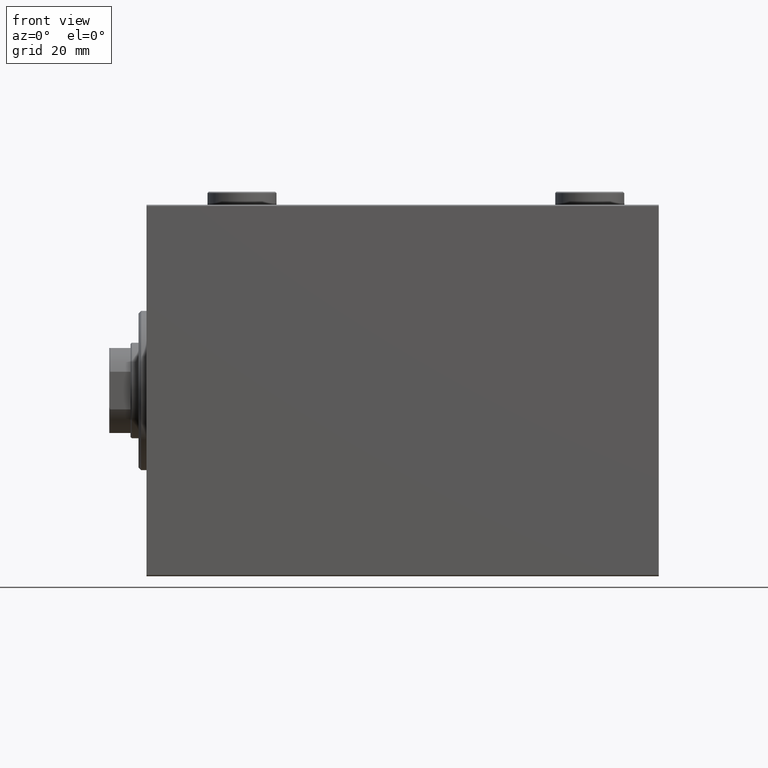
[diagram: clean part render]
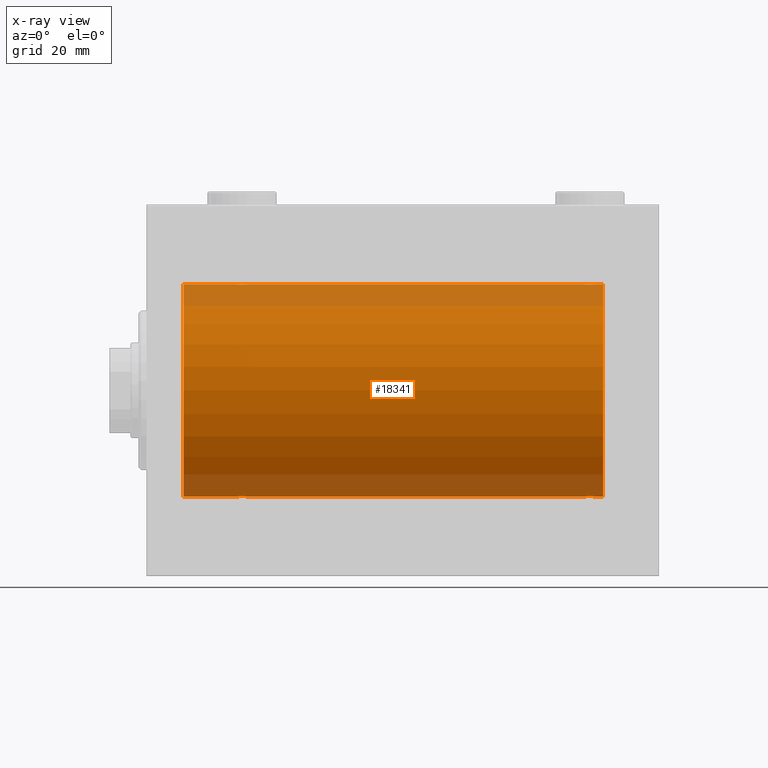
[diagram: x-ray — body ghosted, one internal face saturated and labeled with its STEP entity id]
A machine part, front view, then the same camera in x-ray: the body is ghosted and one INTERNAL B-rep face — a face not visible from any outside direction — is saturated and labeled: STEP entity #18341.
In plain terms, the highlighted cylindrical surface (partial cylindrical patch) has radius 40 mm, axis along (-1, -0, -0).
Its self-contained STEP definition (entity closure, byte-faithful):
#16 = CARTESIAN_POINT ( 'NONE',  ( 166.8043946892691736, -3.000157693440640205, -39.88732948994960736 ) ) ;
#273 = VERTEX_POINT ( 'NONE', #3049 ) ;
#688 = CARTESIAN_POINT ( 'NONE',  ( 36.96938341894465907, -2.845855236045336856, -39.89870693240651178 ) ) ;
#701 = CARTESIAN_POINT ( 'NONE',  ( 170.0000000000000284, -0.1957844162750470851, -39.99999999999999289 ) ) ;
#804 = ORIENTED_EDGE ( 'NONE', *, *, #15633, .T. ) ;
#805 = CARTESIAN_POINT ( 'NONE',  ( 169.3825168091146622, -1.833695109615722352, 39.95828327492363030 ) ) ;
#1086 = VERTEX_POINT ( 'NONE', #43477 ) ;
#1141 = CARTESIAN_POINT ( 'NONE',  ( 33.61748319088535908, -1.833695109615714802, -39.95828327492363741 ) ) ;
#1780 = CARTESIAN_POINT ( 'NONE',  ( 14.00000000000001243, 4.898587196589413026E-15, -40.00000000000000000 ) ) ;
#2131 = VECTOR ( 'NONE', #5060, 1000.000000000000000 ) ;
#2175 = CARTESIAN_POINT ( 'NONE',  ( 14.00000000000001243, 0.000000000000000000, 0.000000000000000000 ) ) ;
#2401 = CYLINDRICAL_SURFACE ( 'NONE', #3856, 40.00000000000000000 ) ;
#2425 = CARTESIAN_POINT ( 'NONE',  ( 170.0000000000000284, 1.446721683758770418E-15, 40.00000000000000000 ) ) ;
#2621 = FACE_OUTER_BOUND ( 'NONE', #4472, .T. ) ;
#2666 = DIRECTION ( 'NONE',  ( -1.000000000000000000, -0.000000000000000000, -0.000000000000000000 ) ) ;
#2718 = CARTESIAN_POINT ( 'NONE',  ( 37.50088468404035069, -2.604941918888315833, 39.91523680494983495 ) ) ;
#2730 = CARTESIAN_POINT ( 'NONE',  ( 164.0000000000000284, -0.1957844162750525807, 40.00000000000000000 ) ) ;
#3049 = CARTESIAN_POINT ( 'NONE',  ( 170.0000000000000284, 4.898587181765620889E-15, -40.00000000000000000 ) ) ;
#3261 = EDGE_CURVE ( 'NONE', #273, #29802, #3468, .T. ) ;
#3411 = CARTESIAN_POINT ( 'NONE',  ( 38.69537007708435539, -1.331594428131644747, 39.97823692017209396 ) ) ;
#3468 = B_SPLINE_CURVE_WITH_KNOTS ( 'NONE', 3,
 ( #10872, #701, #42308, #25450, #10413, #42990, #24996, #32616, #21963, #35159, #7407, #7859, #35395, #21507, #14795, #28693, #28922, #16, #36080, #3488, #17572, #3948, #11326, #29144, #4406, #18499, #18031, #14111, #28231, #24758, #32154, #11103 ),
 .UNSPECIFIED., .F., .F.,
 ( 4, 2, 2, 2, 2, 2, 2, 2, 2, 2, 2, 2, 2, 2, 2, 4 ),
 ( 0.009382660366305091426, 0.009968941372944125495, 0.01055522237958316130, 0.01114150338622219710, 0.01172778439286123117, 0.01231406539950026524, 0.01290034640613930104, 0.01348662741277833685, 0.01407290841941737092, 0.01465918942605640499, 0.01524547043269544079, 0.01583175143933447659, 0.01641803244597351066, 0.01700431345261254473, 0.01759059445925158227, 0.01876315647252968163 ),
 .UNSPECIFIED. ) ;
#3488 = CARTESIAN_POINT ( 'NONE',  ( 166.2254432117366321, -2.904869018727222585, -39.89440043036668726 ) ) ;
#3597 = CARTESIAN_POINT ( 'NONE',  ( 164.1533472698686467, -0.9668189122103342248, 39.98872185468384544 ) ) ;
#3706 = CARTESIAN_POINT ( 'NONE',  ( 39.00000000000000000, 4.898587181754971267E-15, -40.00000000000000000 ) ) ;
#3802 = DIRECTION ( 'NONE',  ( -1.000000000000000000, -0.000000000000000000, -0.000000000000000000 ) ) ;
#3856 = AXIS2_PLACEMENT_3D ( 'NONE', #20180, #37759, #16711 ) ;
#3930 = CARTESIAN_POINT ( 'NONE',  ( 39.00000000000000000, 4.898587181754971267E-15, -40.00000000000000000 ) ) ;
#3933 = CARTESIAN_POINT ( 'NONE',  ( 33.07973825008353685, -0.7903958539027382546, -39.99381900068937767 ) ) ;
#3948 = CARTESIAN_POINT ( 'NONE',  ( 165.6714635525371193, -2.696981015661925163, -39.90904630908467965 ) ) ;
#4163 = CARTESIAN_POINT ( 'NONE',  ( 38.38507600915353635, -1.830402106103512505, -39.95843610133493229 ) ) ;
#4320 = EDGE_CURVE ( 'NONE', #32471, #26175, #36768, .T. ) ;
#4397 = CARTESIAN_POINT ( 'NONE',  ( 32.99999999999998579, -0.3964922677423637909, -39.99999999999998579 ) ) ;
#4406 = CARTESIAN_POINT ( 'NONE',  ( 165.0186372048577539, -2.261082456166712440, -39.93628274425757496 ) ) ;
#4472 = EDGE_LOOP ( 'NONE', ( #8267, #16247, #18360, #12113, #24467, #11999, #42466, #22269, #9883, #39443, #804, #6058 ) ) ;
#4528 = CARTESIAN_POINT ( 'NONE',  ( 172.0000000000000000, 4.898587196589413026E-15, -40.00000000000000000 ) ) ;
#4983 = DIRECTION ( 'NONE',  ( -1.000000000000000000, -0.000000000000000000, -0.000000000000000000 ) ) ;
#5060 = DIRECTION ( 'NONE',  ( -1.000000000000000000, -0.000000000000000000, -0.000000000000000000 ) ) ;
#5151 = CARTESIAN_POINT ( 'NONE',  ( 32.99999999999999289, 4.605585004310627937E-15, -40.00000000000000000 ) ) ;
#6058 = ORIENTED_EDGE ( 'NONE', *, *, #42338, .F. ) ;
#6184 = CARTESIAN_POINT ( 'NONE',  ( 36.96489325853514174, -2.847401743820462183, 39.89859630624607689 ) ) ;
#6192 = CARTESIAN_POINT ( 'NONE',  ( 165.1695517717760424, -2.384933850258109445, 39.92898715513240404 ) ) ;
#6821 = DIRECTION ( 'NONE',  ( -1.000000000000000000, -0.000000000000000000, -0.000000000000000000 ) ) ;
#6873 = CARTESIAN_POINT ( 'NONE',  ( 164.0000000000000284, -8.638112143271993746E-15, -40.00000000000000000 ) ) ;
#7288 = CARTESIAN_POINT ( 'NONE',  ( 164.3956640008792363, -1.502129635934003948, 39.97212271185186694 ) ) ;
#7396 = CARTESIAN_POINT ( 'NONE',  ( 38.84665273013138176, -0.9668189122103333366, -39.98872185468385254 ) ) ;
#7407 = CARTESIAN_POINT ( 'NONE',  ( 168.8304482282240997, -2.384933850258111221, -39.92898715513241825 ) ) ;
#7444 = VECTOR ( 'NONE', #6821, 1000.000000000000000 ) ;
#7475 = CARTESIAN_POINT ( 'NONE',  ( 172.0000000000000000, 4.898587196589413026E-15, -40.00000000000000000 ) ) ;
#7515 = CARTESIAN_POINT ( 'NONE',  ( 164.3027865941912466, -1.327859336864145590, 39.97836169682017982 ) ) ;
#7616 = CARTESIAN_POINT ( 'NONE',  ( 32.99999999999999289, 4.605585004310627937E-15, -40.00000000000000000 ) ) ;
#7641 = B_SPLINE_CURVE_WITH_KNOTS ( 'NONE', 3,
 ( #26113, #9204, #26574, #11993, #22400, #8988, #40647, #33277, #23307, #23078, #37401, #29805, #15688, #43885, #12220, #38305, #35082, #27238, #10104, #9654, #6184, #30925, #2718, #13341, #27461, #41766, #27015, #16812, #3411, #30701, #23756, #24215 ),
 .UNSPECIFIED., .F., .F.,
 ( 4, 2, 2, 2, 2, 2, 2, 2, 2, 2, 2, 2, 2, 2, 2, 4 ),
 ( 0.009382660366305105304, 0.009968941372944142842, 0.01055522237958318038, 0.01114150338622221965, 0.01172778439286125719, 0.01231406539950029473, 0.01290034640613933400, 0.01348662741277837154, 0.01407290841941740908, 0.01465918942605644835, 0.01524547043269548416, 0.01583175143933452517, 0.01641803244597356271, 0.01700431345261260024, 0.01759059445925163778, 0.01876315647252971286 ),
 .UNSPECIFIED. ) ;
#7735 = CARTESIAN_POINT ( 'NONE',  ( 168.9813627951423314, -2.261082456166709775, 39.93628274425758207 ) ) ;
#7859 = CARTESIAN_POINT ( 'NONE',  ( 168.5044308291347193, -2.602909538701760006, -39.91537030566259148 ) ) ;
#7965 = CIRCLE ( 'NONE', #19024, 40.00000000000000000 ) ;
#8267 = ORIENTED_EDGE ( 'NONE', *, *, #41963, .F. ) ;
#8426 = CARTESIAN_POINT ( 'NONE',  ( 172.0000000000000000, 0.000000000000000000, 40.00000000000000000 ) ) ;
#8739 = EDGE_CURVE ( 'NONE', #17709, #40667, #33470, .T. ) ;
#8744 = VECTOR ( 'NONE', #36992, 1000.000000000000000 ) ;
#8988 = CARTESIAN_POINT ( 'NONE',  ( 33.30278659419118270, -1.327859336864150253, 39.97836169682017982 ) ) ;
#9204 = CARTESIAN_POINT ( 'NONE',  ( 32.99999999999997158, -0.1957844162750552452, 40.00000000000000000 ) ) ;
#9654 = CARTESIAN_POINT ( 'NONE',  ( 36.77455678826341057, -2.904869018727228358, 39.89440043036668015 ) ) ;
#9883 = ORIENTED_EDGE ( 'NONE', *, *, #17080, .T. ) ;
#9907 = CARTESIAN_POINT ( 'NONE',  ( 172.0000000000000000, 0.000000000000000000, 0.000000000000000000 ) ) ;
#10104 = CARTESIAN_POINT ( 'NONE',  ( 36.39109692509333627, -2.980812880639903906, 39.88879797994688658 ) ) ;
#10413 = CARTESIAN_POINT ( 'NONE',  ( 169.8466527301314102, -0.9668189122103265642, -39.98872185468383122 ) ) ;
#10750 = CARTESIAN_POINT ( 'NONE',  ( 164.0189812288907376, -0.3904143323715967839, 39.99856256910221219 ) ) ;
#10872 = CARTESIAN_POINT ( 'NONE',  ( 170.0000000000000284, 4.898587181765620889E-15, -40.00000000000000000 ) ) ;
#10874 = CARTESIAN_POINT ( 'NONE',  ( 32.99999999999999289, -1.483452932268112700E-23, 40.00000000000000000 ) ) ;
#11103 = CARTESIAN_POINT ( 'NONE',  ( 164.0000000000000284, -8.638112143271993746E-15, -40.00000000000000000 ) ) ;
#11326 = CARTESIAN_POINT ( 'NONE',  ( 165.4991153159597275, -2.604941918888315833, -39.91523680494984916 ) ) ;
#11545 = CARTESIAN_POINT ( 'NONE',  ( 38.69721340580881730, -1.327859336864144035, -39.97836169682019403 ) ) ;
#11778 = CARTESIAN_POINT ( 'NONE',  ( 38.26097616994740491, -1.981471132463162643, -39.95113231465139592 ) ) ;
#11979 = LINE ( 'NONE', #42958, #2131 ) ;
#11993 = CARTESIAN_POINT ( 'NONE',  ( 33.09574826348647036, -0.7773146824711036906, 39.99291453282343412 ) ) ;
#11999 = ORIENTED_EDGE ( 'NONE', *, *, #14776, .T. ) ;
#12113 = ORIENTED_EDGE ( 'NONE', *, *, #45281, .T. ) ;
#12220 = CARTESIAN_POINT ( 'NONE',  ( 35.22130476584258219, -2.903766417398241373, 39.89448096967571189 ) ) ;
#12452 = EDGE_CURVE ( 'NONE', #38303, #1086, #33667, .T. ) ;
#12710 = CARTESIAN_POINT ( 'NONE',  ( 172.0000000000000000, 0.000000000000000000, 40.00000000000000000 ) ) ;
#12799 = DIRECTION ( 'NONE',  ( -1.000000000000000000, 0.000000000000000000, 0.000000000000000000 ) ) ;
#13341 = CARTESIAN_POINT ( 'NONE',  ( 37.82690184632411246, -2.387636253591820079, 39.92882473497731866 ) ) ;
#14111 = CARTESIAN_POINT ( 'NONE',  ( 164.3981127187151969, -1.506322235190792780, -39.97196309111976831 ) ) ;
#14552 = CARTESIAN_POINT ( 'NONE',  ( 36.77869523415743913, -2.903766417398228938, -39.89448096967571900 ) ) ;
#14641 = LINE ( 'NONE', #22037, #20494 ) ;
#14667 = CARTESIAN_POINT ( 'NONE',  ( 165.0153855218772776, -2.258217541132898631, 39.93644519243653690 ) ) ;
#14776 = EDGE_CURVE ( 'NONE', #40667, #43376, #41946, .T. ) ;
#14782 = CARTESIAN_POINT ( 'NONE',  ( 35.22544321173658943, -2.904869018727217700, -39.89440043036668726 ) ) ;
#14795 = CARTESIAN_POINT ( 'NONE',  ( 167.7786952341575386, -2.903766417398233823, -39.89448096967571900 ) ) ;
#14899 = CARTESIAN_POINT ( 'NONE',  ( 166.0306165810553978, -2.845855236045348402, 39.89870693240650468 ) ) ;
#15633 = EDGE_CURVE ( 'NONE', #38303, #39420, #44573, .T. ) ;
#15688 = CARTESIAN_POINT ( 'NONE',  ( 34.66775731134134730, -2.695129988695744494, 39.90917164320281074 ) ) ;
#16247 = ORIENTED_EDGE ( 'NONE', *, *, #25185, .T. ) ;
#16711 = DIRECTION ( 'NONE',  ( 0.000000000000000000, 0.000000000000000000, 1.000000000000000000 ) ) ;
#16812 = CARTESIAN_POINT ( 'NONE',  ( 38.60188728128492386, -1.506322235190783232, 39.97196309111974699 ) ) ;
#17080 = EDGE_CURVE ( 'NONE', #32471, #1086, #7641, .T. ) ;
#17572 = CARTESIAN_POINT ( 'NONE',  ( 166.0351067414649151, -2.847401743820456854, -39.89859630624609110 ) ) ;
#17683 = CARTESIAN_POINT ( 'NONE',  ( 164.7390238300525880, -1.981471132463162643, 39.95113231465138171 ) ) ;
#17709 = VERTEX_POINT ( 'NONE', #3930 ) ;
#17794 = CARTESIAN_POINT ( 'NONE',  ( 38.90425173651351543, -0.7773146824710984726, -39.99291453282344122 ) ) ;
#17910 = CARTESIAN_POINT ( 'NONE',  ( 165.4955691708653660, -2.602909538701757342, 39.91537030566259858 ) ) ;
#18031 = CARTESIAN_POINT ( 'NONE',  ( 164.6174831908854230, -1.833695109615727015, -39.95828327492365162 ) ) ;
#18135 = CARTESIAN_POINT ( 'NONE',  ( 164.6149239908464494, -1.830402106103516280, 39.95843610133492518 ) ) ;
#18251 = CARTESIAN_POINT ( 'NONE',  ( 37.50443082913466242, -2.602909538701748016, -39.91537030566259148 ) ) ;
#18341 = ADVANCED_FACE ( 'NONE', ( #2621 ), #2401, .F. ) ;
#18360 = ORIENTED_EDGE ( 'NONE', *, *, #3261, .T. ) ;
#18386 = LINE ( 'NONE', #4528, #23210 ) ;
#18499 = CARTESIAN_POINT ( 'NONE',  ( 164.7417032967950092, -1.984537326394312906, -39.95097977400578770 ) ) ;
#19024 = AXIS2_PLACEMENT_3D ( 'NONE', #9907, #38110, #23344 ) ;
#20180 = CARTESIAN_POINT ( 'NONE',  ( 172.0000000000000000, 0.000000000000000000, 0.000000000000000000 ) ) ;
#20283 = CARTESIAN_POINT ( 'NONE',  ( 164.0957482634864562, -0.7773146824711021363, 39.99291453282343412 ) ) ;
#20494 = VECTOR ( 'NONE', #3802, 1000.000000000000000 ) ;
#21387 = CARTESIAN_POINT ( 'NONE',  ( 166.6047751654643037, -2.980272303779546217, 39.88883864243170052 ) ) ;
#21496 = CARTESIAN_POINT ( 'NONE',  ( 33.39811271871507614, -1.506322235190781456, -39.97196309111974699 ) ) ;
#21507 = CARTESIAN_POINT ( 'NONE',  ( 167.9693834189446875, -2.845855236045351067, -39.89870693240651178 ) ) ;
#21837 = CARTESIAN_POINT ( 'NONE',  ( 170.0000000000000568, -0.3964922677423700081, 40.00000000000001421 ) ) ;
#21952 = CARTESIAN_POINT ( 'NONE',  ( 37.98461447812278635, -2.258217541132897743, -39.93644519243654400 ) ) ;
#21963 = CARTESIAN_POINT ( 'NONE',  ( 169.2609761699474689, -1.981471132463164420, -39.95113231465140302 ) ) ;
#22037 = CARTESIAN_POINT ( 'NONE',  ( 172.0000000000000000, 0.000000000000000000, 40.00000000000000000 ) ) ;
#22185 = CARTESIAN_POINT ( 'NONE',  ( 37.83044822822401443, -2.384933850258100119, -39.92898715513241115 ) ) ;
#22269 = ORIENTED_EDGE ( 'NONE', *, *, #4320, .F. ) ;
#22400 = CARTESIAN_POINT ( 'NONE',  ( 33.15334726986859692, -0.9668189122103387767, 39.98872185468385254 ) ) ;
#23078 = CARTESIAN_POINT ( 'NONE',  ( 34.01538552187719233, -2.258217541132905293, 39.93644519243653690 ) ) ;
#23210 = VECTOR ( 'NONE', #4983, 1000.000000000000000 ) ;
#23307 = CARTESIAN_POINT ( 'NONE',  ( 33.73902383005257377, -1.981471132463168416, 39.95113231465138881 ) ) ;
#23344 = DIRECTION ( 'NONE',  ( 0.000000000000000000, 0.000000000000000000, 1.000000000000000000 ) ) ;
#23756 = CARTESIAN_POINT ( 'NONE',  ( 39.00000000000000711, -0.3964922677423692865, 40.00000000000000711 ) ) ;
#23899 = CIRCLE ( 'NONE', #26132, 40.00000000000000000 ) ;
#24215 = CARTESIAN_POINT ( 'NONE',  ( 39.00000000000000000, 1.037715139942869821E-15, 40.00000000000000000 ) ) ;
#24467 = ORIENTED_EDGE ( 'NONE', *, *, #8739, .T. ) ;
#24758 = CARTESIAN_POINT ( 'NONE',  ( 164.0797382500836079, -0.7903958539027432506, -39.99381900068937767 ) ) ;
#24870 = CARTESIAN_POINT ( 'NONE',  ( 166.7995871398080396, -2.999840380514742666, 39.88735335562825668 ) ) ;
#24982 = CARTESIAN_POINT ( 'NONE',  ( 38.99999999999999289, -0.1957844162750510819, -40.00000000000000711 ) ) ;
#24996 = CARTESIAN_POINT ( 'NONE',  ( 169.6043359991209059, -1.502129635934011054, -39.97212271185185273 ) ) ;
#25106 = CARTESIAN_POINT ( 'NONE',  ( 168.3285364474630512, -2.696981015661923387, 39.90904630908469386 ) ) ;
#25185 = EDGE_CURVE ( 'NONE', #43871, #273, #18386, .T. ) ;
#25450 = CARTESIAN_POINT ( 'NONE',  ( 169.9042517365135438, -0.7773146824710949199, -39.99291453282344122 ) ) ;
#25902 = CARTESIAN_POINT ( 'NONE',  ( 36.20041286019198168, -2.999840380514735116, -39.88735335562824957 ) ) ;
#26113 = CARTESIAN_POINT ( 'NONE',  ( 32.99999999999999289, -1.483452932268112700E-23, 40.00000000000000000 ) ) ;
#26132 = AXIS2_PLACEMENT_3D ( 'NONE', #2175, #12799, #27143 ) ;
#26175 = VERTEX_POINT ( 'NONE', #43756 ) ;
#26574 = CARTESIAN_POINT ( 'NONE',  ( 33.01898122889073051, -0.3904143323715976166, 39.99856256910221219 ) ) ;
#27015 = CARTESIAN_POINT ( 'NONE',  ( 38.38251680911464803, -1.833695109615718355, 39.95828327492363741 ) ) ;
#27143 = DIRECTION ( 'NONE',  ( 0.000000000000000000, 0.000000000000000000, 1.000000000000000000 ) ) ;
#27238 = CARTESIAN_POINT ( 'NONE',  ( 36.19560531073086906, -3.000157693440643758, 39.88732948994960026 ) ) ;
#27283 = EDGE_CURVE ( 'NONE', #43376, #26175, #23899, .T. ) ;
#27461 = CARTESIAN_POINT ( 'NONE',  ( 37.98136279514229585, -2.261082456166707111, 39.93628274425758207 ) ) ;
#28048 = VECTOR ( 'NONE', #2666, 1000.000000000000000 ) ;
#28111 = CARTESIAN_POINT ( 'NONE',  ( 166.2213047658425751, -2.903766417398230271, 39.89448096967571189 ) ) ;
#28231 = CARTESIAN_POINT ( 'NONE',  ( 164.3046299229157228, -1.331594428131648522, -39.97823692017211528 ) ) ;
#28336 = CARTESIAN_POINT ( 'NONE',  ( 169.9202617499165626, -0.7903958539027363672, 39.99381900068937767 ) ) ;
#28444 = CARTESIAN_POINT ( 'NONE',  ( 35.80439468926913804, -3.000157693440631324, -39.88732948994960026 ) ) ;
#28693 = CARTESIAN_POINT ( 'NONE',  ( 167.3952248345358100, -2.980272303779548881, -39.88883864243168631 ) ) ;
#28801 = CARTESIAN_POINT ( 'NONE',  ( 168.8269018463242048, -2.387636253591820079, 39.92882473497732576 ) ) ;
#28910 = CARTESIAN_POINT ( 'NONE',  ( 33.30462992291564461, -1.331594428131640528, -39.97823692017208685 ) ) ;
#28922 = CARTESIAN_POINT ( 'NONE',  ( 167.2004128601921025, -2.999840380514743998, -39.88735335562825668 ) ) ;
#29144 = CARTESIAN_POINT ( 'NONE',  ( 165.1730981536759657, -2.387636253591822300, -39.92882473497733287 ) ) ;
#29362 = CARTESIAN_POINT ( 'NONE',  ( 38.98101877110926239, -0.3904143323715931757, -39.99856256910221219 ) ) ;
#29802 = VERTEX_POINT ( 'NONE', #6873 ) ;
#29805 = CARTESIAN_POINT ( 'NONE',  ( 34.49556917086533758, -2.602909538701760006, 39.91537030566259148 ) ) ;
#30701 = CARTESIAN_POINT ( 'NONE',  ( 38.92026174991647025, -0.7903958539027386987, 39.99381900068935636 ) ) ;
#30925 = CARTESIAN_POINT ( 'NONE',  ( 37.32853644746295885, -2.696981015661930936, 39.90904630908465833 ) ) ;
#30935 = CARTESIAN_POINT ( 'NONE',  ( 168.5008846840404431, -2.604941918888313612, 39.91523680494984916 ) ) ;
#31015 = VERTEX_POINT ( 'NONE', #8426 ) ;
#31810 = CARTESIAN_POINT ( 'NONE',  ( 170.0000000000000284, 1.446721683758770418E-15, 40.00000000000000000 ) ) ;
#31917 = CARTESIAN_POINT ( 'NONE',  ( 37.33224268865864559, -2.695129988695729839, -39.90917164320280364 ) ) ;
#32144 = CARTESIAN_POINT ( 'NONE',  ( 36.39522483453576029, -2.980272303779541332, -39.88883864243169342 ) ) ;
#32154 = CARTESIAN_POINT ( 'NONE',  ( 164.0000000000000284, -0.3964922677423805553, -40.00000000000000000 ) ) ;
#32370 = CARTESIAN_POINT ( 'NONE',  ( 34.01863720485770415, -2.261082456166700005, -39.93628274425758917 ) ) ;
#32471 = VERTEX_POINT ( 'NONE', #10874 ) ;
#32486 = CARTESIAN_POINT ( 'NONE',  ( 167.3910969250934215, -2.980812880639897688, 39.88879797994690080 ) ) ;
#32616 = CARTESIAN_POINT ( 'NONE',  ( 169.3850760091535790, -1.830402106103521831, -39.95843610133494650 ) ) ;
#33277 = CARTESIAN_POINT ( 'NONE',  ( 33.61492399084646365, -1.830402106103518722, 39.95843610133494650 ) ) ;
#33470 = B_SPLINE_CURVE_WITH_KNOTS ( 'NONE', 3,
 ( #3706, #24982, #29362, #17794, #7396, #11545, #42753, #4163, #11778, #21952, #22185, #18251, #31917, #688, #14552, #32144, #25902, #28444, #43441, #14782, #42979, #39976, #42525, #39063, #32370, #36068, #1141, #21496, #28910, #3933, #4397, #7616 ),
 .UNSPECIFIED., .F., .F.,
 ( 4, 2, 2, 2, 2, 2, 2, 2, 2, 2, 2, 2, 2, 2, 2, 4 ),
 ( 0.009382660366305110508, 0.009968941372944146312, 0.01055522237958318212, 0.01114150338622221792, 0.01172778439286125372, 0.01231406539950028953, 0.01290034640613932533, 0.01348662741277836113, 0.01407290841941739694, 0.01465918942605643274, 0.01524547043269546855, 0.01583175143933450435, 0.01641803244597354189, 0.01700431345261257596, 0.01759059445925161003, 0.01876315647252968163 ),
 .UNSPECIFIED. ) ;
#33667 = LINE ( 'NONE', #40590, #28048 ) ;
#34397 = CARTESIAN_POINT ( 'NONE',  ( 169.6953700770844193, -1.331594428131642527, 39.97823692017210107 ) ) ;
#35082 = CARTESIAN_POINT ( 'NONE',  ( 35.79958713980802543, -2.999840380514749327, 39.88735335562824247 ) ) ;
#35159 = CARTESIAN_POINT ( 'NONE',  ( 168.9846144781228929, -2.258217541132900852, -39.93644519243655111 ) ) ;
#35271 = CARTESIAN_POINT ( 'NONE',  ( 164.0000000000000284, -1.482387970046064334E-23, 40.00000000000000000 ) ) ;
#35395 = CARTESIAN_POINT ( 'NONE',  ( 168.3322426886586527, -2.695129988695748491, -39.90917164320283916 ) ) ;
#35949 = CARTESIAN_POINT ( 'NONE',  ( 169.6018872812850020, -1.506322235190787895, 39.97196309111976831 ) ) ;
#36068 = CARTESIAN_POINT ( 'NONE',  ( 33.74170329679496660, -1.984537326394300250, -39.95097977400577349 ) ) ;
#36080 = CARTESIAN_POINT ( 'NONE',  ( 166.6089030749067490, -2.980812880639900353, -39.88879797994690080 ) ) ;
#36768 = LINE ( 'NONE', #12710, #8744 ) ;
#36992 = DIRECTION ( 'NONE',  ( -1.000000000000000000, -0.000000000000000000, -0.000000000000000000 ) ) ;
#37401 = CARTESIAN_POINT ( 'NONE',  ( 34.16955177177597847, -2.384933850258112553, 39.92898715513240404 ) ) ;
#37759 = DIRECTION ( 'NONE',  ( -1.000000000000000000, -0.000000000000000000, -0.000000000000000000 ) ) ;
#38110 = DIRECTION ( 'NONE',  ( -1.000000000000000000, 0.000000000000000000, 0.000000000000000000 ) ) ;
#38303 = VERTEX_POINT ( 'NONE', #43848 ) ;
#38305 = CARTESIAN_POINT ( 'NONE',  ( 35.60477516546423260, -2.980272303779553766, 39.88883864243167920 ) ) ;
#38482 = CARTESIAN_POINT ( 'NONE',  ( 172.0000000000000000, 4.898587196589413026E-15, -40.00000000000000000 ) ) ;
#38955 = CARTESIAN_POINT ( 'NONE',  ( 169.2582967032051044, -1.984537326394308909, 39.95097977400577349 ) ) ;
#39063 = CARTESIAN_POINT ( 'NONE',  ( 34.17309815367588754, -2.387636253591812974, -39.92882473497732576 ) ) ;
#39403 = CARTESIAN_POINT ( 'NONE',  ( 167.7745567882635385, -2.904869018727220364, 39.89440043036669437 ) ) ;
#39420 = VERTEX_POINT ( 'NONE', #2425 ) ;
#39443 = ORIENTED_EDGE ( 'NONE', *, *, #12452, .F. ) ;
#39976 = CARTESIAN_POINT ( 'NONE',  ( 34.67146355253704826, -2.696981015661917613, -39.90904630908468675 ) ) ;
#40590 = CARTESIAN_POINT ( 'NONE',  ( 172.0000000000000000, 0.000000000000000000, 40.00000000000000000 ) ) ;
#40647 = CARTESIAN_POINT ( 'NONE',  ( 33.39566400087915810, -1.502129635934004614, 39.97212271185186694 ) ) ;
#40667 = VERTEX_POINT ( 'NONE', #5151 ) ;
#41766 = CARTESIAN_POINT ( 'NONE',  ( 38.25829670320502629, -1.984537326394305801, 39.95097977400578060 ) ) ;
#41946 = LINE ( 'NONE', #38482, #7444 ) ;
#41963 = EDGE_CURVE ( 'NONE', #43871, #31015, #7965, .T. ) ;
#42308 = CARTESIAN_POINT ( 'NONE',  ( 169.9810187711092908, -0.3904143323715896785, -39.99856256910220509 ) ) ;
#42338 = EDGE_CURVE ( 'NONE', #31015, #39420, #14641, .T. ) ;
#42466 = ORIENTED_EDGE ( 'NONE', *, *, #27283, .T. ) ;
#42525 = CARTESIAN_POINT ( 'NONE',  ( 34.49911531595966352, -2.604941918888306507, -39.91523680494982784 ) ) ;
#42643 = CARTESIAN_POINT ( 'NONE',  ( 167.1956053107309401, -3.000157693440639761, 39.88732948994960736 ) ) ;
#42753 = CARTESIAN_POINT ( 'NONE',  ( 38.60433599912083480, -1.502129635934000396, -39.97212271185185273 ) ) ;
#42871 = CARTESIAN_POINT ( 'NONE',  ( 165.6677573113414326, -2.695129988695745826, 39.90917164320281074 ) ) ;
#42958 = CARTESIAN_POINT ( 'NONE',  ( 172.0000000000000000, 4.898587196589413026E-15, -40.00000000000000000 ) ) ;
#42979 = CARTESIAN_POINT ( 'NONE',  ( 35.03510674146484405, -2.847401743820449305, -39.89859630624607689 ) ) ;
#42990 = CARTESIAN_POINT ( 'NONE',  ( 169.6972134058088386, -1.327859336864137374, -39.97836169682017271 ) ) ;
#43092 = CARTESIAN_POINT ( 'NONE',  ( 167.9648932585352270, -2.847401743820454190, 39.89859630624609821 ) ) ;
#43376 = VERTEX_POINT ( 'NONE', #1780 ) ;
#43441 = CARTESIAN_POINT ( 'NONE',  ( 35.60890307490667794, -2.980812880639892359, -39.88879797994688658 ) ) ;
#43477 = CARTESIAN_POINT ( 'NONE',  ( 39.00000000000000000, 1.037715139942869821E-15, 40.00000000000000000 ) ) ;
#43756 = CARTESIAN_POINT ( 'NONE',  ( 14.00000000000001243, 0.000000000000000000, 40.00000000000000000 ) ) ;
#43848 = CARTESIAN_POINT ( 'NONE',  ( 164.0000000000000284, -1.482387970046064334E-23, 40.00000000000000000 ) ) ;
#43871 = VERTEX_POINT ( 'NONE', #7475 ) ;
#43885 = CARTESIAN_POINT ( 'NONE',  ( 35.03061658105534804, -2.845855236045349734, 39.89870693240651889 ) ) ;
#44573 = B_SPLINE_CURVE_WITH_KNOTS ( 'NONE', 3,
 ( #35271, #2730, #10750, #20283, #3597, #7515, #7288, #18135, #17683, #14667, #6192, #17910, #42871, #14899, #28111, #21387, #24870, #42643, #32486, #39403, #43092, #25106, #30935, #28801, #7735, #38955, #805, #35949, #34397, #28336, #21837, #31810 ),
 .UNSPECIFIED., .F., .F.,
 ( 4, 2, 2, 2, 2, 2, 2, 2, 2, 2, 2, 2, 2, 2, 2, 4 ),
 ( 0.009382660366305094896, 0.009968941372944130699, 0.01055522237958316650, 0.01114150338622220404, 0.01172778439286123985, 0.01231406539950027565, 0.01290034640613930972, 0.01348662741277834379, 0.01407290841941737959, 0.01465918942605641540, 0.01524547043269544946, 0.01583175143933448353, 0.01641803244597352107, 0.01700431345261255514, 0.01759059445925158921, 0.01876315647252969204 ),
 .UNSPECIFIED. ) ;
#45281 = EDGE_CURVE ( 'NONE', #29802, #17709, #11979, .T. ) ;